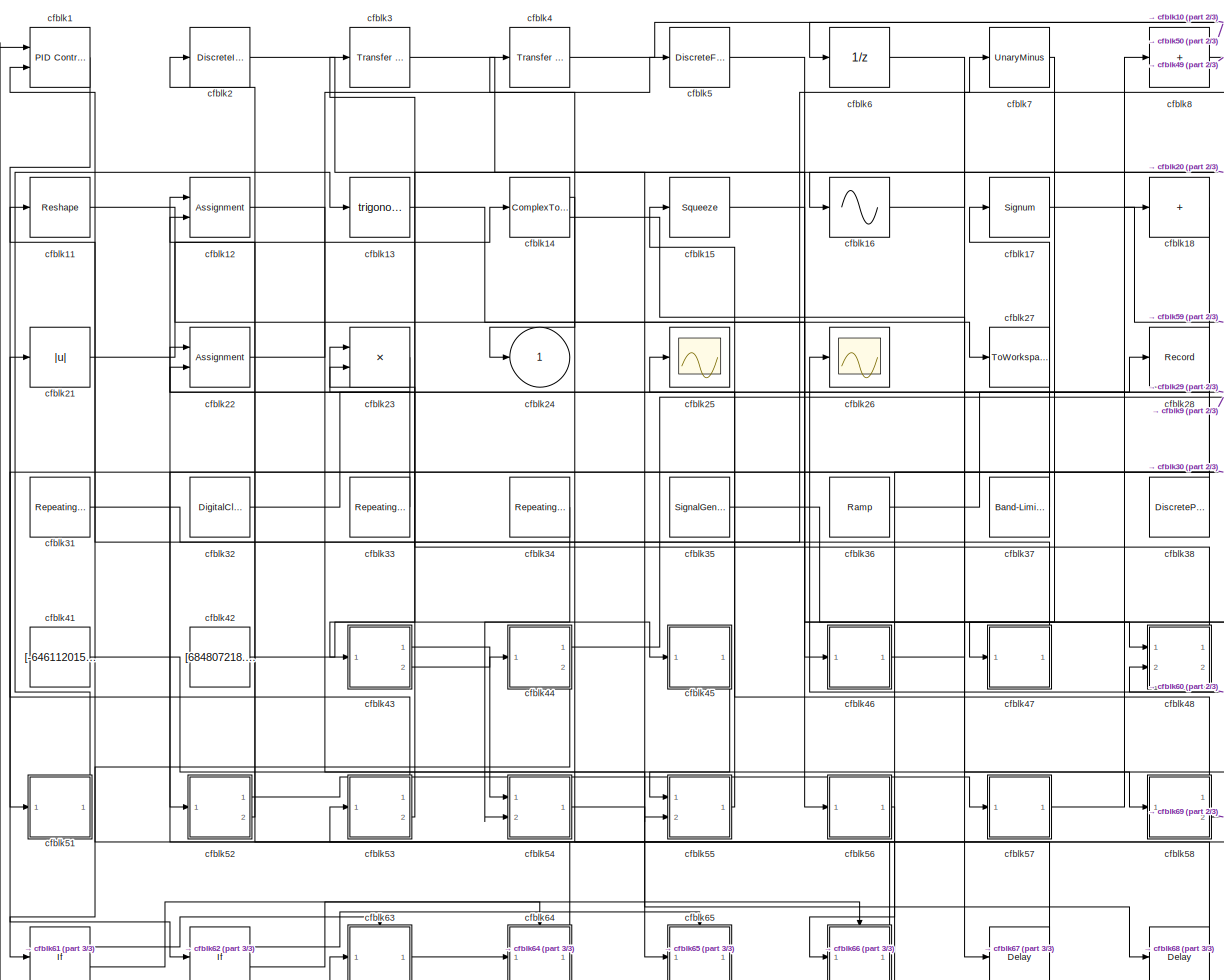
[diagram: root canvas - part 1/3, most of the canvas]
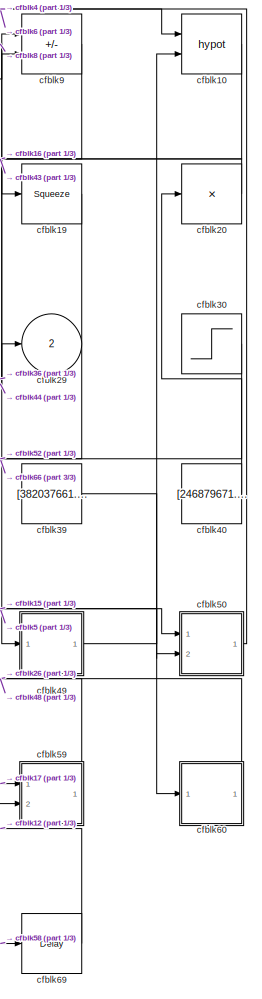
[diagram: root canvas - part 2/3, right side, full height]
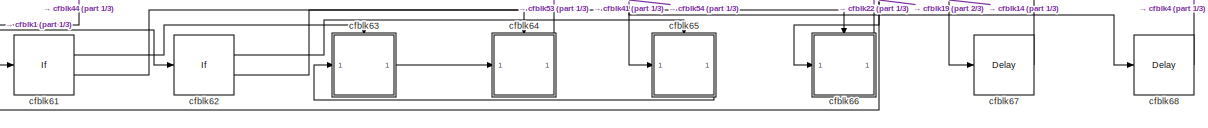
[diagram: root canvas - part 3/3, full width, bottom band]
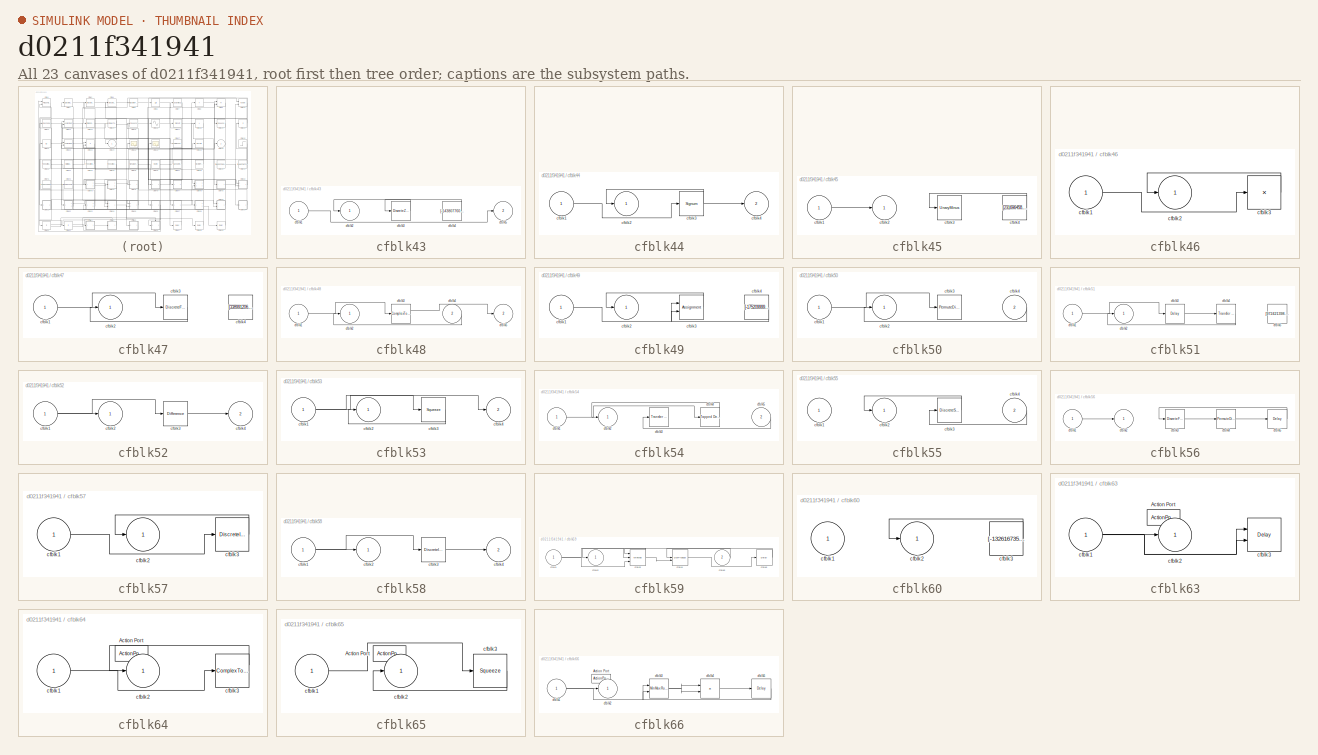
[diagram: thumbnail index - all 23 canvases of the model, root first then tree order]
MODEL slx_d0211f341941
KIND model
CONFIG AbsTol = auto
CONFIG EnableMultiTasking = off
CONFIG FixedStep = auto
CONFIG MaxStep = auto
CONFIG MinStep = auto
CONFIG RelTol = 1e-3
CONFIG SampleTimeConstraint = Unconstrained
CONFIG SolverName = VariableStepAuto
CONFIG StartTime = 0.0
CONFIG StopTime = 10.0
BLOCK [Reference] cfblk1  REF=slpidlib/PID Controller (2DOF)
  Ports = [2, 1]
  SourceBlock = slpidlib/PID Controller (2DOF)
  SourceProductBaseCode = SL
  SourceType = PID 2dof
BLOCK [Math] cfblk10
  Operator = hypot
  Ports = [2, 1]
BLOCK [Reshape] cfblk11
  Ports = [1, 1]
BLOCK [Assignment] cfblk12
  DiagnosticForDimensions = Warning
  IndexOptions = Index vector (dialog)
  Indices = 1
  OutputSizes = 1
  Ports = [2, 1]
BLOCK [Trigonometry] cfblk13
  Ports = [1, 1]
BLOCK [ComplexToRealImag] cfblk14
  Ports = [1, 2]
BLOCK [Squeeze] cfblk15
BLOCK [Sin] cfblk16
  Ports = [1, 1]
  SampleTime = 0
  TimeSource = Use external signal
BLOCK [Signum] cfblk17
BLOCK [Sum] cfblk18
  IconShape = rectangular
  Inputs = +
  Ports = [1, 1]
BLOCK [Squeeze] cfblk19
BLOCK [DiscreteIntegrator] cfblk2
  ICPrevOutput = DiscIntNeverNeededParam
  ICPrevScaledInput = DiscIntNeverNeededParam
  InitialConditionSetting = Auto
  Ports = [1, 1]
BLOCK [Product] cfblk20
  Inputs = *
  Ports = [1, 1]
BLOCK [Abs] cfblk21
  SaturateOnIntegerOverflow = off
BLOCK [Assignment] cfblk22
  DiagnosticForDimensions = Warning
  IndexOptions = Index vector (dialog)
  Indices = 1
  OutputSizes = 1
  Ports = [2, 1]
BLOCK [Product] cfblk23
  Ports = [2, 1]
BLOCK [Outport] cfblk24
BLOCK [Scope] cfblk25
  Floating = off
  NumInputPorts = 1
  Ports = [1]
BLOCK [Scope] cfblk26
  Floating = off
  NumInputPorts = 1
  Ports = [1]
BLOCK [ToWorkspace] cfblk27
  FixptAsFi = on
  MaxDataPoints = inf
  Ports = [1]
  SampleTime = -1
  SaveFormat = Timeseries
  VariableName = pfssiav
BLOCK [Record] cfblk28
  FileSettingsInternal = {"entries":[{"content":{"excelSettings":{"content":{},"type":"Streamout.ExcelSettings"}},"type":"Streamout.FileSettingStorage","uuid":"f226d651-ed76-4685-bd0d-a7206099ba54"}],"packageUris":["http://schema.mathworks.com/mf0/streamout_blocks/R2020a"],"version":"1.0"}
  Ports = [1]
  SignalsInternal = {"entries":[{"content":{"signals":[{"content":{"blockPath":["sampleModel19/cfblk28"],"channel":[],"dimensions":[1],"domain":"sampleModel19/cfblk28","lineColor":"#b746ff","plots":[1],"port":1,"sid":[""],"signalID":797,"signalName":"cfblk46"},"type":"RecordBlkView.Signal","uuid":"ee6bbbbf-7b49-4810-a904-b0b81152954a"}]},"type":"RecordBlkView.InputSignals","uuid":"19e5beda-3c9f-445c-ba6f-61ea0a1a64e1...<+94ch>
  VisualizationBindings = {"sparklinesplugin":{"info":[{"bindingParametersList":[],"subplotID":1}]}}
BLOCK [Outport] cfblk29
  Port = 2
BLOCK [Reference] cfblk3  REF=simulink/Discrete/Transfer Fcn
Lead or Lag
  Ports = [1, 1]
  SourceBlock = simulink/Discrete/Transfer Fcn\nLead or Lag
  SourceProductBaseCode = SL
  SourceType = Lead or Lag Compensator
BLOCK [Step] cfblk30
  After = [413926557.525764]
  Before = [19293273.623970]
  SampleTime = 0
  Time = [38.000000]
BLOCK [Reference] cfblk31  REF=simulink/Sources/Repeating
Sequence
Stair
  Ports = [0, 1]
  SourceBlock = simulink/Sources/Repeating\nSequence\nStair
  SourceProductBaseCode = SL
  SourceType = Repeating Sequence Stair
BLOCK [DigitalClock] cfblk32
BLOCK [Reference] cfblk33  REF=simulink/Sources/Repeating
Sequence
Interpolated
  Ports = [0, 1]
  SourceBlock = simulink/Sources/Repeating\nSequence\nInterpolated
  SourceProductBaseCode = SL
  SourceType = Repeating Sequence Interpolated
BLOCK [Reference] cfblk34  REF=simulink/Sources/Repeating
Sequence
Interpolated
  Ports = [0, 1]
  SourceBlock = simulink/Sources/Repeating\nSequence\nInterpolated
  SourceProductBaseCode = SL
  SourceType = Repeating Sequence Interpolated
BLOCK [SignalGenerator] cfblk35
  Amplitude = [-12395821.292946]
  Ports = [0, 1]
  Units = rad/sec
  WaveForm = square
BLOCK [Reference] cfblk36  REF=simulink/Sources/Ramp
  Ports = [0, 1]
  SourceBlock = simulink/Sources/Ramp
  SourceProductBaseCode = SL
  SourceType = Ramp
BLOCK [Reference] cfblk37  REF=simulink/Sources/Band-Limited
White Noise
  Ports = [0, 1]
  SourceBlock = simulink/Sources/Band-Limited\nWhite Noise
  SourceProductBaseCode = SL
  SourceType = Band-Limited White Noise.
BLOCK [DiscretePulseGenerator] cfblk38
  Amplitude = [-893610121.964039]
  Period = [84363192.211661]
  PhaseDelay = [6.000000]
  Ports = [0, 1]
  PulseType = Time based
  PulseWidth = 5
BLOCK [Constant] cfblk39
  SampleTime = 1
  Value = [382037661.110754]
BLOCK [Reference] cfblk4  REF=simulink/Discrete/Transfer Fcn
First Order
  Ports = [1, 1]
  SourceBlock = simulink/Discrete/Transfer Fcn\nFirst Order
  SourceProductBaseCode = SL
  SourceType = First Order Transfer Fcn
BLOCK [Constant] cfblk40
  SampleTime = 1
  Value = [246879671.288015]
BLOCK [Constant] cfblk41
  SampleTime = 1
  Value = [-646112015.732997]
BLOCK [Constant] cfblk42
  SampleTime = 1
  Value = [684807218.995349]
BLOCK [SubSystem] cfblk43
  Ports = [1, 2]
  RequestExecContextInheritance = off
BLOCK [Inport] cfblk43/cfblk1
BLOCK [Outport] cfblk43/cfblk2
BLOCK [DiscreteZeroPole] cfblk43/cfblk3
  Gain = 1
  Poles = [0 0.5]
BLOCK [Constant] cfblk43/cfblk4
  SampleTime = 1
  Value = [-143807760.528919]
BLOCK [Outport] cfblk43/cfblk5
  Port = 2
BLOCK [SubSystem] cfblk44
  Ports = [1, 2]
  RequestExecContextInheritance = off
BLOCK [Inport] cfblk44/cfblk1
BLOCK [Outport] cfblk44/cfblk2
BLOCK [Signum] cfblk44/cfblk3
BLOCK [Outport] cfblk44/cfblk4
  Port = 2
BLOCK [SubSystem] cfblk45
  Ports = [1, 1]
  RequestExecContextInheritance = off
BLOCK [Inport] cfblk45/cfblk1
BLOCK [Outport] cfblk45/cfblk2
BLOCK [UnaryMinus] cfblk45/cfblk3
BLOCK [Constant] cfblk45/cfblk4
  SampleTime = 1
  Value = [231696458.263089]
BLOCK [SubSystem] cfblk46
  Ports = [1, 1]
  RequestExecContextInheritance = off
BLOCK [Inport] cfblk46/cfblk1
BLOCK [Outport] cfblk46/cfblk2
BLOCK [Product] cfblk46/cfblk3
  Inputs = *
  Ports = [1, 1]
BLOCK [SubSystem] cfblk47
  Ports = [1, 1]
  RequestExecContextInheritance = off
BLOCK [Inport] cfblk47/cfblk1
BLOCK [Outport] cfblk47/cfblk2
BLOCK [DiscreteFilter] cfblk47/cfblk3
  InputPortMap = u0
  Ports = [1, 1]
  SampleTime = 1
BLOCK [Constant] cfblk47/cfblk4
  SampleTime = 1
  Value = [338991206.712136]
BLOCK [SubSystem] cfblk48
  Ports = [2, 2]
  RequestExecContextInheritance = off
BLOCK [Inport] cfblk48/cfblk1
BLOCK [Outport] cfblk48/cfblk2
BLOCK [ComplexToRealImag] cfblk48/cfblk3
  Ports = [1, 2]
BLOCK [Inport] cfblk48/cfblk4
  Port = 2
BLOCK [Outport] cfblk48/cfblk5
  Port = 2
BLOCK [SubSystem] cfblk49
  Ports = [1, 1]
  RequestExecContextInheritance = off
BLOCK [Inport] cfblk49/cfblk1
BLOCK [Outport] cfblk49/cfblk2
BLOCK [Assignment] cfblk49/cfblk3
  DiagnosticForDimensions = Warning
  IndexOptions = Index vector (dialog)
  Indices = 1
  OutputSizes = 1
  Ports = [2, 1]
BLOCK [Constant] cfblk49/cfblk4
  SampleTime = 1
  Value = [-175209999.582198]
BLOCK [DiscreteFir] cfblk5
  InputPortMap = u0
  OutputPortMap = o0
  Ports = [1, 1]
  SampleTime = 1
BLOCK [SubSystem] cfblk50
  Ports = [2, 1]
  RequestExecContextInheritance = off
BLOCK [Inport] cfblk50/cfblk1
BLOCK [Outport] cfblk50/cfblk2
BLOCK [PermuteDimensions] cfblk50/cfblk3
BLOCK [Inport] cfblk50/cfblk4
  Port = 2
BLOCK [SubSystem] cfblk51
  Ports = [1, 1]
  RequestExecContextInheritance = off
BLOCK [Inport] cfblk51/cfblk1
BLOCK [Outport] cfblk51/cfblk2
BLOCK [Delay] cfblk51/cfblk3
  InputPortMap = u0
  Ports = [1, 1]
  SampleTime = 1
BLOCK [Reference] cfblk51/cfblk4  REF=simulink/Discrete/Transfer Fcn
First Order
  Ports = [1, 1]
  SourceBlock = simulink/Discrete/Transfer Fcn\nFirst Order
  SourceProductBaseCode = SL
  SourceType = First Order Transfer Fcn
BLOCK [Constant] cfblk51/cfblk5
  SampleTime = 1
  Value = [972421398.167656]
BLOCK [SubSystem] cfblk52
  Ports = [1, 2]
  RequestExecContextInheritance = off
BLOCK [Inport] cfblk52/cfblk1
BLOCK [Outport] cfblk52/cfblk2
BLOCK [Reference] cfblk52/cfblk3  REF=simulink/Discrete/Difference
  Ports = [1, 1]
  SourceBlock = simulink/Discrete/Difference
  SourceProductBaseCode = SL
  SourceType = Difference
BLOCK [Outport] cfblk52/cfblk4
  Port = 2
BLOCK [SubSystem] cfblk53
  Ports = [1, 2]
  RequestExecContextInheritance = off
BLOCK [Inport] cfblk53/cfblk1
BLOCK [Outport] cfblk53/cfblk2
BLOCK [Squeeze] cfblk53/cfblk3
BLOCK [Outport] cfblk53/cfblk4
  Port = 2
BLOCK [SubSystem] cfblk54
  Ports = [2, 1]
  RequestExecContextInheritance = off
BLOCK [Inport] cfblk54/cfblk1
BLOCK [Outport] cfblk54/cfblk2
BLOCK [Reference] cfblk54/cfblk3  REF=simulink/Discrete/Transfer Fcn
Lead or Lag
  Ports = [1, 1]
  SourceBlock = simulink/Discrete/Transfer Fcn\nLead or Lag
  SourceProductBaseCode = SL
  SourceType = Lead or Lag Compensator
BLOCK [Reference] cfblk54/cfblk4  REF=simulink/Discrete/Tapped Delay
  Ports = [1, 1]
  SourceBlock = simulink/Discrete/Tapped Delay
  SourceProductBaseCode = SL
  SourceType = Tapped Delay Line
BLOCK [Inport] cfblk54/cfblk5
  Port = 2
BLOCK [SubSystem] cfblk55
  Ports = [2, 1]
  RequestExecContextInheritance = off
BLOCK [Inport] cfblk55/cfblk1
BLOCK [Outport] cfblk55/cfblk2
BLOCK [DiscreteStateSpace] cfblk55/cfblk3
BLOCK [Inport] cfblk55/cfblk4
  Port = 2
BLOCK [SubSystem] cfblk56
  Ports = [1, 1]
  RequestExecContextInheritance = off
BLOCK [Inport] cfblk56/cfblk1
BLOCK [Outport] cfblk56/cfblk2
BLOCK [DiscreteFir] cfblk56/cfblk3
  InputPortMap = u0
  OutputPortMap = o0
  Ports = [1, 1]
  SampleTime = 1
BLOCK [PermuteDimensions] cfblk56/cfblk4
BLOCK [Delay] cfblk56/cfblk5
  InputPortMap = u0
  Ports = [1, 1]
  SampleTime = 1
BLOCK [SubSystem] cfblk57
  Ports = [1, 1]
  RequestExecContextInheritance = off
BLOCK [Inport] cfblk57/cfblk1
BLOCK [Outport] cfblk57/cfblk2
BLOCK [DiscreteIntegrator] cfblk57/cfblk3
  ICPrevOutput = DiscIntNeverNeededParam
  ICPrevScaledInput = DiscIntNeverNeededParam
  InitialConditionSetting = Auto
  Ports = [1, 1]
BLOCK [SubSystem] cfblk58
  Ports = [1, 2]
  RequestExecContextInheritance = off
BLOCK [Inport] cfblk58/cfblk1
BLOCK [Outport] cfblk58/cfblk2
BLOCK [DiscreteIntegrator] cfblk58/cfblk3
  ICPrevOutput = DiscIntNeverNeededParam
  ICPrevScaledInput = DiscIntNeverNeededParam
  InitialConditionSetting = Auto
  Ports = [1, 1]
BLOCK [Outport] cfblk58/cfblk4
  Port = 2
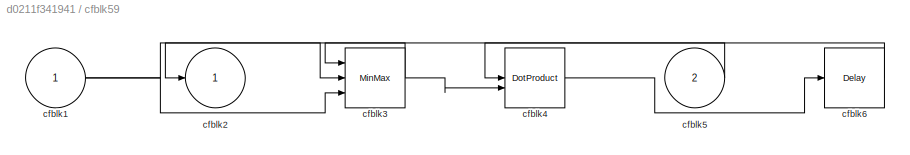
BLOCK [SubSystem] cfblk59
  Ports = [2, 1]
  RequestExecContextInheritance = off
BLOCK [Inport] cfblk59/cfblk1
BLOCK [Outport] cfblk59/cfblk2
BLOCK [MinMax] cfblk59/cfblk3
  Inputs = 3
  Ports = [3, 1]
BLOCK [DotProduct] cfblk59/cfblk4
  OutDataTypeStr = Inherit: Inherit via internal rule
BLOCK [Inport] cfblk59/cfblk5
  Port = 2
BLOCK [Delay] cfblk59/cfblk6
  InputPortMap = u0
  Ports = [1, 1]
  SampleTime = 1
BLOCK [UnitDelay] cfblk6
  HasFrameUpgradeWarning = on
BLOCK [SubSystem] cfblk60
  Ports = [1, 1]
  RequestExecContextInheritance = off
BLOCK [Inport] cfblk60/cfblk1
BLOCK [Outport] cfblk60/cfblk2
BLOCK [Constant] cfblk60/cfblk3
  SampleTime = 1
  Value = [-132616735.512844]
BLOCK [If] cfblk61
  IfExpression = u1 >= 0
  Ports = [1, 2]
  SampleTime = 1
BLOCK [If] cfblk62
  IfExpression = u1 >= 0
  Ports = [1, 2]
  SampleTime = 1
BLOCK [SubSystem] cfblk63
  Ports = [1, 1, 0, 0, 0, 0, 0, 1]
  RequestExecContextInheritance = off
  TreatAsAtomicUnit = on
BLOCK [ActionPort] cfblk63/Action Port
  ActionPortLabel = if(u1 >= 0)
BLOCK [Inport] cfblk63/cfblk1
BLOCK [Outport] cfblk63/cfblk2
BLOCK [Delay] cfblk63/cfblk3
  InputPortMap = u0,e6
  Ports = [2, 1]
  ShowEnablePort = on
BLOCK [SubSystem] cfblk64
  Ports = [1, 1, 0, 0, 0, 0, 0, 1]
  RequestExecContextInheritance = off
  TreatAsAtomicUnit = on
BLOCK [ActionPort] cfblk64/Action Port
  ActionPortLabel = else
BLOCK [Inport] cfblk64/cfblk1
BLOCK [Outport] cfblk64/cfblk2
BLOCK [ComplexToRealImag] cfblk64/cfblk3
  Ports = [1, 2]
BLOCK [SubSystem] cfblk65
  Ports = [1, 1, 0, 0, 0, 0, 0, 1]
  RequestExecContextInheritance = off
  TreatAsAtomicUnit = on
BLOCK [ActionPort] cfblk65/Action Port
  ActionPortLabel = if(u1 >= 0)
BLOCK [Inport] cfblk65/cfblk1
BLOCK [Outport] cfblk65/cfblk2
BLOCK [Squeeze] cfblk65/cfblk3
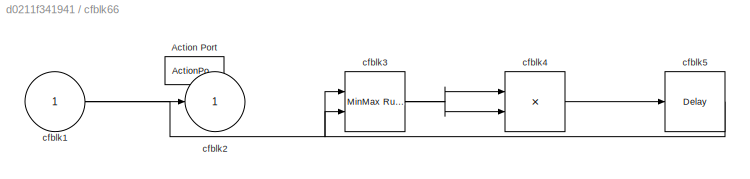
BLOCK [SubSystem] cfblk66
  Ports = [1, 1, 0, 0, 0, 0, 0, 1]
  RequestExecContextInheritance = off
  TreatAsAtomicUnit = on
BLOCK [ActionPort] cfblk66/Action Port
  ActionPortLabel = else
BLOCK [Inport] cfblk66/cfblk1
BLOCK [Outport] cfblk66/cfblk2
BLOCK [Reference] cfblk66/cfblk3  REF=simulink/Math
Operations/MinMax
Running
Resettable
  Ports = [2, 1]
  SourceBlock = simulink/Math\nOperations/MinMax\nRunning\nResettable
  SourceProductBaseCode = SL
  SourceType = MinMax Running Resettable
BLOCK [Product] cfblk66/cfblk4
  Inputs = **
  Ports = [2, 1]
BLOCK [Delay] cfblk66/cfblk5
  InputPortMap = u0
  Ports = [1, 1]
BLOCK [Delay] cfblk67
  InputPortMap = u0
  Ports = [1, 1]
  SampleTime = 1
BLOCK [Delay] cfblk68
  InputPortMap = u0
  Ports = [1, 1]
  SampleTime = 1
BLOCK [Delay] cfblk69
  InputPortMap = u0
  Ports = [1, 1]
  SampleTime = 1
BLOCK [UnaryMinus] cfblk7
BLOCK [Sum] cfblk8
  IconShape = rectangular
  Inputs = +
  Ports = [1, 1]
BLOCK [Sum] cfblk9
  IconShape = rectangular
  Inputs = +-
  Ports = [2, 1]
LINE cfblk10:1 -> cfblk43:1
LINE cfblk11:1 -> cfblk46:1
LINE cfblk12:1 -> cfblk58:1
LINE cfblk13:1 -> cfblk27:1
LINE cfblk14:1 -> cfblk24:1
LINE cfblk14:2 -> cfblk67:1
LINE cfblk15:1 -> cfblk50:2
LINE cfblk16:1 -> cfblk9:2
LINE cfblk17:1 -> cfblk59:1
LINE cfblk18:1 -> cfblk51:1
LINE cfblk19:1 -> cfblk66:1
LINE cfblk1:1 -> cfblk62:1
LINE cfblk20:1 -> cfblk16:1
LINE cfblk21:1 -> cfblk14:1
LINE cfblk22:1 -> cfblk5:1
LINE cfblk23:1 -> cfblk22:2
LINE cfblk2:1 -> cfblk56:1
LINE cfblk30:1 -> cfblk52:1
LINE cfblk31:1 -> cfblk7:1
LINE cfblk32:1 -> cfblk18:1
LINE cfblk33:1 -> cfblk12:1
LINE cfblk34:1 -> cfblk54:2
LINE cfblk35:1 -> cfblk48:1
LINE cfblk36:1 -> cfblk29:1
LINE cfblk37:1 -> cfblk17:1
LINE cfblk38:1 -> cfblk23:2
LINE cfblk39:1 -> cfblk60:1
LINE cfblk3:1 -> cfblk55:2
LINE cfblk40:1 -> cfblk20:1
LINE cfblk41:1 -> cfblk65:1
LINE cfblk42:1 -> cfblk45:1
LINE cfblk43/cfblk1:1 -> cfblk43/cfblk5:1
LINE cfblk43/cfblk3:1 -> cfblk43/cfblk2:1
LINE cfblk43/cfblk4:1 -> cfblk43/cfblk3:1
LINE cfblk43:1 -> cfblk54:1
LINE cfblk43:2 -> cfblk44:1
LINE cfblk44/cfblk1:1 -> cfblk44/cfblk3:1
NET cfblk44/cfblk3:1 -> cfblk44/cfblk2:1, cfblk44/cfblk4:1
LINE cfblk44:1 -> cfblk9:1
LINE cfblk44:2 -> cfblk61:1
LINE cfblk45/cfblk1:1 -> cfblk45/cfblk2:1
LINE cfblk45/cfblk4:1 -> cfblk45/cfblk3:1
LINE cfblk45:1 -> cfblk55:1
LINE cfblk46/cfblk1:1 -> cfblk46/cfblk3:1
LINE cfblk46/cfblk3:1 -> cfblk46/cfblk2:1
LINE cfblk46:1 -> cfblk28:1
LINE cfblk47/cfblk1:1 -> cfblk47/cfblk3:1
LINE cfblk47/cfblk3:1 -> cfblk47/cfblk2:1
LINE cfblk47:1 -> cfblk11:1
LINE cfblk48/cfblk1:1 -> cfblk48/cfblk3:1
LINE cfblk48/cfblk3:1 -> cfblk48/cfblk5:1
LINE cfblk48/cfblk4:1 -> cfblk48/cfblk2:1
LINE cfblk48:1 -> cfblk3:1
LINE cfblk49/cfblk1:1 -> cfblk49/cfblk3:1
LINE cfblk49/cfblk3:1 -> cfblk49/cfblk2:1
LINE cfblk49/cfblk4:1 -> cfblk49/cfblk3:2
LINE cfblk49:1 -> cfblk10:2
LINE cfblk4:1 -> cfblk10:1
LINE cfblk50/cfblk1:1 -> cfblk50/cfblk3:1
LINE cfblk50/cfblk4:1 -> cfblk50/cfblk2:1
LINE cfblk50:1 -> cfblk6:1
LINE cfblk51/cfblk1:1 -> cfblk51/cfblk3:1
LINE cfblk51/cfblk3:1 -> cfblk51/cfblk4:1
LINE cfblk51/cfblk4:1 -> cfblk51/cfblk2:1
LINE cfblk51:1 -> cfblk13:1
NET cfblk52/cfblk1:1 -> cfblk52/cfblk2:1, cfblk52/cfblk3:1
LINE cfblk52/cfblk3:1 -> cfblk52/cfblk4:1
LINE cfblk52:1 -> cfblk57:1
LINE cfblk52:2 -> cfblk2:1
NET cfblk53/cfblk1:1 -> cfblk53/cfblk3:1, cfblk53/cfblk4:1
LINE cfblk53/cfblk3:1 -> cfblk53/cfblk2:1
LINE cfblk53:1 -> cfblk21:1
LINE cfblk53:2 -> cfblk23:1
LINE cfblk54/cfblk1:1 -> cfblk54/cfblk4:1
LINE cfblk54/cfblk4:1 -> cfblk54/cfblk2:1
LINE cfblk54/cfblk5:1 -> cfblk54/cfblk3:1
LINE cfblk54:1 -> cfblk68:1
LINE cfblk55/cfblk3:1 -> cfblk55/cfblk2:1
LINE cfblk55/cfblk4:1 -> cfblk55/cfblk3:1
LINE cfblk55:1 -> cfblk25:1
LINE cfblk56/cfblk1:1 -> cfblk56/cfblk2:1
LINE cfblk56/cfblk3:1 -> cfblk56/cfblk4:1
LINE cfblk56/cfblk4:1 -> cfblk56/cfblk5:1
LINE cfblk56/cfblk5:1 -> cfblk56/cfblk3:1
LINE cfblk56:1 -> cfblk1:1
LINE cfblk57/cfblk1:1 -> cfblk57/cfblk3:1
LINE cfblk57/cfblk3:1 -> cfblk57/cfblk2:1
LINE cfblk57:1 -> cfblk8:1
NET cfblk58/cfblk1:1 -> cfblk58/cfblk2:1, cfblk58/cfblk3:1
LINE cfblk58/cfblk3:1 -> cfblk58/cfblk4:1
LINE cfblk58:1 -> cfblk15:1
LINE cfblk58:2 -> cfblk69:1
NET cfblk59/cfblk1:1 -> cfblk59/cfblk3:2, cfblk59/cfblk3:3
NET cfblk59/cfblk3:1 -> cfblk59/cfblk2:1, cfblk59/cfblk4:2
LINE cfblk59/cfblk4:1 -> cfblk59/cfblk6:1
LINE cfblk59/cfblk5:1 -> cfblk59/cfblk4:1
LINE cfblk59/cfblk6:1 -> cfblk59/cfblk3:1
LINE cfblk59:1 -> cfblk48:2
LINE cfblk5:1 -> cfblk50:1
LINE cfblk60/cfblk3:1 -> cfblk60/cfblk2:1
LINE cfblk60:1 -> cfblk26:1
LINE cfblk61:1 -> cfblk63:ifaction
LINE cfblk61:2 -> cfblk64:ifaction
LINE cfblk62:1 -> cfblk65:ifaction
LINE cfblk62:2 -> cfblk66:ifaction
NET cfblk63/cfblk1:1 -> cfblk63/cfblk2:1, cfblk63/cfblk3:1, cfblk63/cfblk3:2
LINE cfblk63:1 -> cfblk64:1
LINE cfblk64/cfblk1:1 -> cfblk64/cfblk3:1
LINE cfblk64/cfblk3:1 -> cfblk64/cfblk2:1
LINE cfblk64:1 -> cfblk53:1
LINE cfblk65/cfblk1:1 -> cfblk65/cfblk3:1
LINE cfblk65/cfblk3:1 -> cfblk65/cfblk2:1
LINE cfblk65:1 -> cfblk63:1
NET cfblk66/cfblk1:1 -> cfblk66/cfblk2:1, cfblk66/cfblk3:1
NET cfblk66/cfblk3:1 -> cfblk66/cfblk4:1, cfblk66/cfblk4:2
LINE cfblk66/cfblk4:1 -> cfblk66/cfblk5:1
LINE cfblk66/cfblk5:1 -> cfblk66/cfblk3:2
LINE cfblk66:1 -> cfblk22:1
LINE cfblk67:1 -> cfblk1:2
LINE cfblk68:1 -> cfblk4:1
LINE cfblk69:1 -> cfblk12:2
LINE cfblk6:1 -> cfblk59:2
LINE cfblk7:1 -> cfblk47:1
LINE cfblk8:1 -> cfblk49:1
LINE cfblk9:1 -> cfblk19:1
note: NET lines group one-source signal fan-out (src -> all destinations, sorted); 1:1 wires keep LINE
